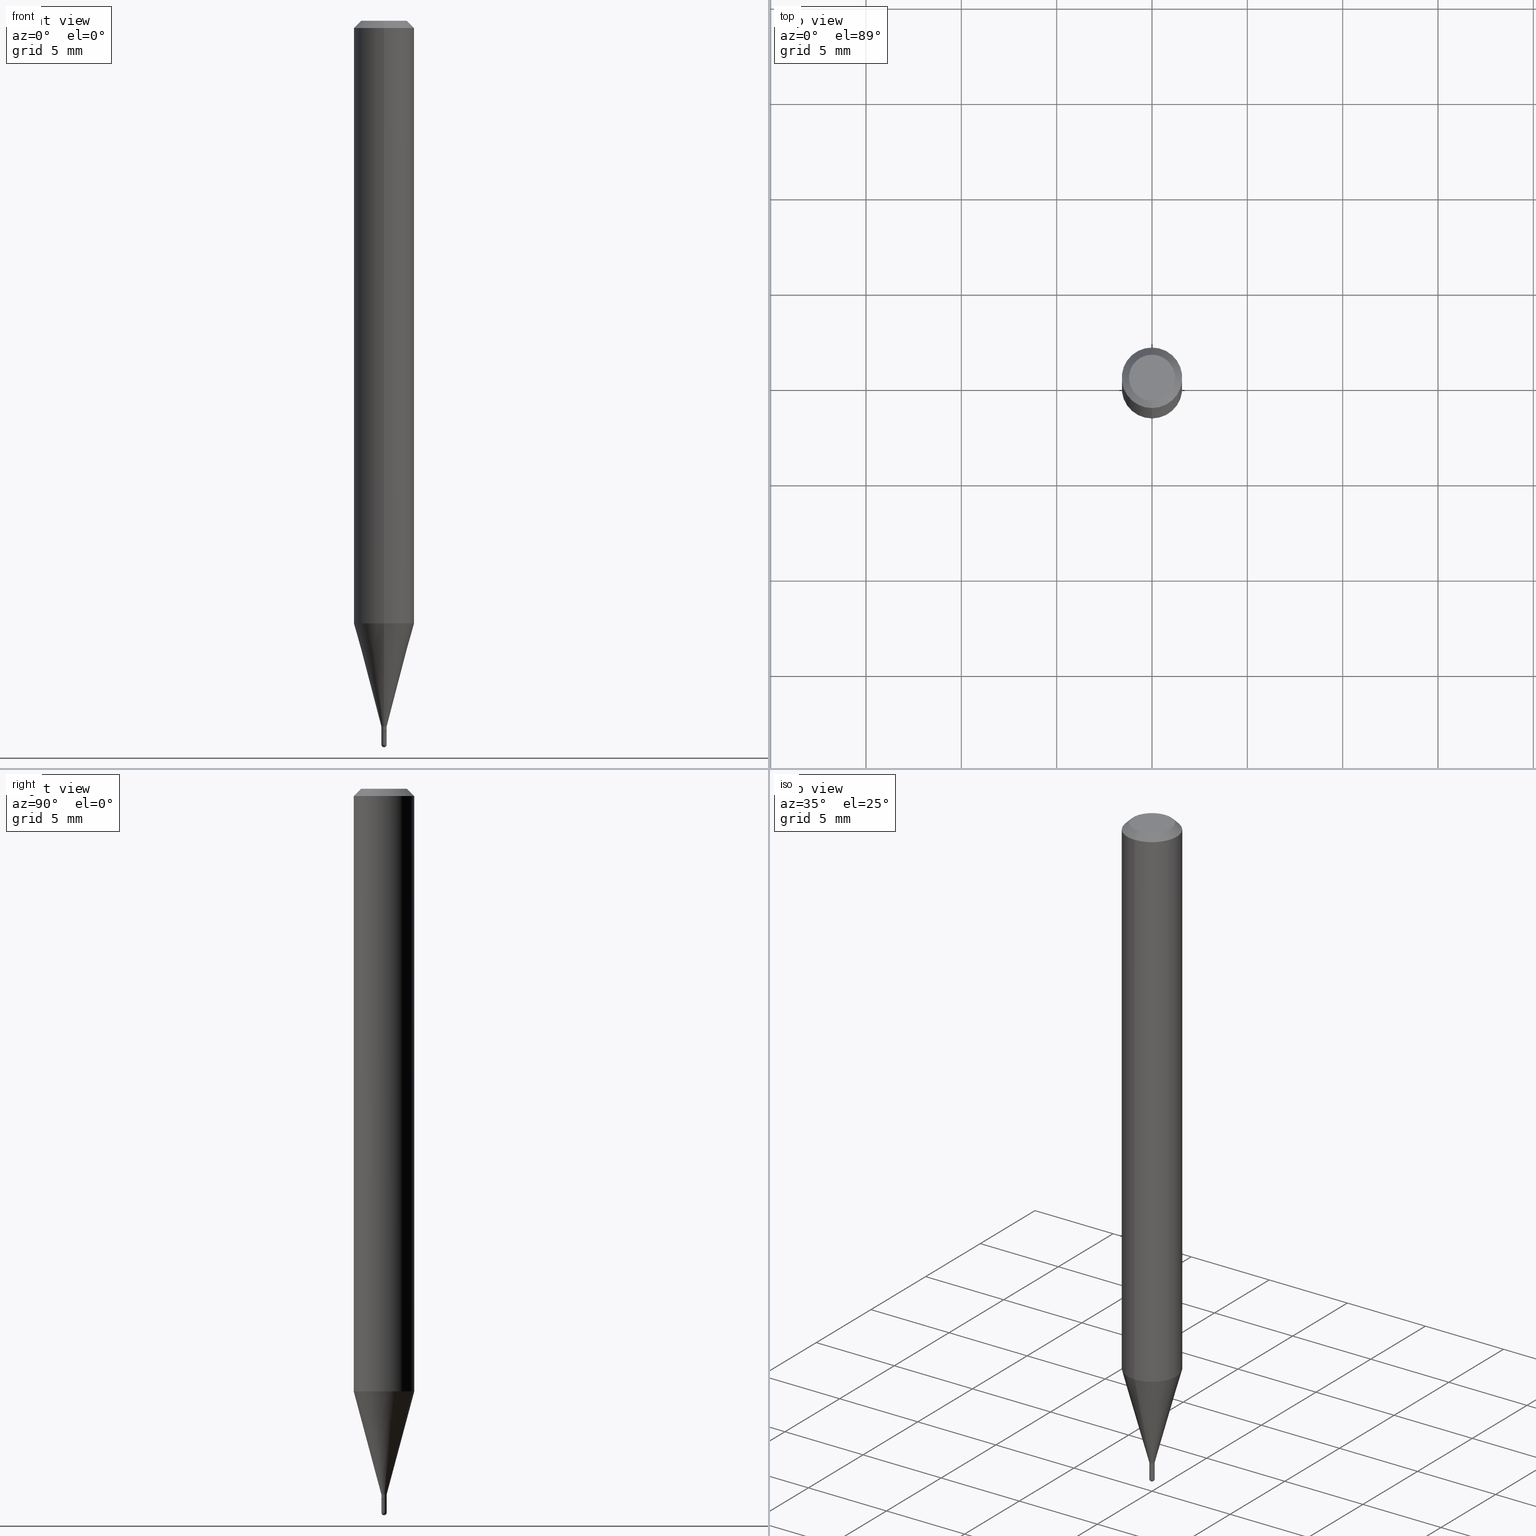
[diagram: canonical four-view strip — front | top / right | iso, engineering-drawing reading convention]
A machine part, canonical four-view strip (front | top / right | iso — engineering-drawing reading convention). The complete STEP part file that produces these views, byte-faithful:
ISO-10303-21;
HEADER;
FILE_DESCRIPTION (( 'STEP AP203' ),
    '1' );
FILE_NAME ('03109.STEP',
    '2024-03-08T18:12:47',
    ( '' ),
    ( '' ),
    'SwSTEP 2.0',
    'SolidWorks 2023',
    '' );
FILE_SCHEMA (( 'CONFIG_CONTROL_DESIGN' ));
ENDSEC;

DATA;
#1 = AXIS2_PLACEMENT_3D ( 'NONE', #455, #140, #299 ) ;
#2 = DIMENSIONAL_EXPONENTS ( 1.000000000000000000, 0.000000000000000000, 0.000000000000000000, 0.000000000000000000, 0.000000000000000000, 0.000000000000000000, 0.000000000000000000 ) ;
#3 = DIRECTION ( 'NONE',  ( 2.445479387329821699E-29, -3.491466186041714698E-15, -1.000000000000000000 ) ) ;
#4 = EDGE_CURVE ( 'NONE', #191, #144, #502, .T. ) ;
#5 = DIRECTION ( 'NONE',  ( 1.000000000000000000, -6.982962677686265922E-15, 4.883557194083112901E-29 ) ) ;
#6 = VERTEX_POINT ( 'NONE', #237 ) ;
#7 = CC_DESIGN_APPROVAL ( #121, ( #233 ) ) ;
#8 = CARTESIAN_POINT ( 'NONE',  ( 3.668219080994673974E-31, -5.237199279062489291E-17, -0.01499999999999976179 ) ) ;
#9 = DIRECTION ( 'NONE',  ( -2.445479387329821699E-29, 3.491466186041715092E-15, 1.000000000000000000 ) ) ;
#10 = FACE_OUTER_BOUND ( 'NONE', #465, .T. ) ;
#11 = APPLICATION_CONTEXT ( 'configuration controlled 3d designs of mechanical parts and assemblies' ) ;
#12 = SHAPE_DEFINITION_REPRESENTATION ( #446, #411 ) ;
#13 = EDGE_CURVE ( 'NONE', #456, #418, #122, .T. ) ;
#14 = CIRCLE ( 'NONE', #403, 0.005499999999999997946 ) ;
#15 = AXIS2_PLACEMENT_3D ( 'NONE', #410, #493, #132 ) ;
#16 = ORIENTED_EDGE ( 'NONE', *, *, #194, .F. ) ;
#17 = CARTESIAN_POINT ( 'NONE',  ( -3.491481338839544778E-17, -0.005000000000005121008, -1.467000000000000304 ) ) ;
#18 = CC_DESIGN_PERSON_AND_ORGANIZATION_ASSIGNMENT ( #454, #105, ( #233 ) ) ;
#19 = CARTESIAN_POINT ( 'NONE',  ( 3.587502738673595692E-29, -5.122003124082895786E-15, -1.467000000000000304 ) ) ;
#20 = ORIENTED_EDGE ( 'NONE', *, *, #474, .T. ) ;
#21 = AXIS2_PLACEMENT_3D ( 'NONE', #315, #439, #206 ) ;
#22 = DIRECTION ( 'NONE',  ( -2.445479387329821699E-29, 3.491466186041715092E-15, 1.000000000000000000 ) ) ;
#23 = DIRECTION ( 'NONE',  ( -6.982962677686265922E-15, -1.000000000000000000, 0.000000000000000000 ) ) ;
#24 = ORIENTED_EDGE ( 'NONE', *, *, #240, .F. ) ;
#25 = DIRECTION ( 'NONE',  ( -2.445479387329821699E-29, 3.491466186041715092E-15, 1.000000000000000000 ) ) ;
#26 = PERSON_AND_ORGANIZATION_ROLE ( 'creator' ) ;
#27 =( NAMED_UNIT ( * ) PLANE_ANGLE_UNIT ( ) SI_UNIT ( $, .RADIAN. ) );
#28 = DIRECTION ( 'NONE',  ( -2.445479387329821699E-29, 3.491466186041715092E-15, 1.000000000000000000 ) ) ;
#29 = CARTESIAN_POINT ( 'NONE',  ( -3.773273898774340269E-16, -0.04749999999999999362, 4.053325667668004325E-16 ) ) ;
#30 = VERTEX_POINT ( 'NONE', #276 ) ;
#31 = ORIENTED_EDGE ( 'NONE', *, *, #467, .T. ) ;
#32 = EDGE_CURVE ( 'NONE', #38, #252, #71, .T. ) ;
#33 = DIRECTION ( 'NONE',  ( -2.445468806185136597E-29, 3.491481338843145583E-15, 1.000000000000000000 ) ) ;
#34 = ORIENTED_EDGE ( 'NONE', *, *, #507, .F. ) ;
#35 = CC_DESIGN_PERSON_AND_ORGANIZATION_ASSIGNMENT ( #510, #257, ( #201 ) ) ;
#36 = EDGE_LOOP ( 'NONE', ( #334, #300 ) ) ;
#37 = DIRECTION ( 'NONE',  ( -2.445479387329821699E-29, 3.491466186041715092E-15, 1.000000000000000000 ) ) ;
#38 = VERTEX_POINT ( 'NONE', #229 ) ;
#39 = PLANE ( 'NONE',  #458 ) ;
#40 = VECTOR ( 'NONE', #434, 39.37007874015748143 ) ;
#41 = CC_DESIGN_APPROVAL ( #386, ( #443 ) ) ;
#42 = AXIS2_PLACEMENT_3D ( 'NONE', #8, #477, #436 ) ;
#43 = CARTESIAN_POINT ( 'NONE',  ( 3.668219080994673974E-31, -5.237199279062489291E-17, -0.01499999999999976179 ) ) ;
#44 = LINE ( 'NONE', #361, #504 ) ;
#45 = CARTESIAN_POINT ( 'NONE',  ( 4.440892098500928887E-16, 0.06249999999999563544, -1.244273103968574823 ) ) ;
#46 = CC_DESIGN_APPROVAL ( #154, ( #426 ) ) ;
#47 = DIRECTION ( 'NONE',  ( 1.839019923739600315E-15, 0.2588190451025249583, 0.9659258262890670910 ) ) ;
#48 = AXIS2_PLACEMENT_3D ( 'NONE', #512, #124, #466 ) ;
#49 = CARTESIAN_POINT ( 'NONE',  ( 0.000000000000000000, 0.000000000000000000, 0.000000000000000000 ) ) ;
#50 = CARTESIAN_POINT ( 'NONE',  ( 3.563063467339550855E-29, -5.087066233062778433E-15, -1.457000000000000073 ) ) ;
#51 = EDGE_CURVE ( 'NONE', #6, #191, #431, .T. ) ;
#52 = EDGE_CURVE ( 'NONE', #256, #423, #346, .T. ) ;
#53 = AXIS2_PLACEMENT_3D ( 'NONE', #380, #181, #193 ) ;
#54 = EDGE_CURVE ( 'NONE', #252, #139, #329, .T. ) ;
#55 = ORIENTED_EDGE ( 'NONE', *, *, #54, .F. ) ;
#56 = DIRECTION ( 'NONE',  ( -2.445479387329821699E-29, 3.491466186041714698E-15, 1.000000000000000000 ) ) ;
#57 = VECTOR ( 'NONE', #159, 39.37007874015748143 ) ;
#58 = CIRCLE ( 'NONE', #471, 0.005499999999999923353 ) ;
#59 = MANIFOLD_SOLID_BREP ( 'Body-Move/Copy2[1]', #208 ) ;
#60 = APPLICATION_CONTEXT ( 'configuration controlled 3d designs of mechanical parts and assemblies' ) ;
#61 = ORIENTED_EDGE ( 'NONE', *, *, #269, .F. ) ;
#62 = ADVANCED_FACE ( 'NONE', ( #86 ), #82, .T. ) ;
#63 = CARTESIAN_POINT ( 'NONE',  ( 3.840629472731033370E-17, 0.005499999999994877042, -1.467000000000000304 ) ) ;
#64 = CARTESIAN_POINT ( 'NONE',  ( 3.563063467339550855E-29, -5.087066233062778433E-15, -1.457000000000000073 ) ) ;
#65 = DIRECTION ( 'NONE',  ( -2.445479387329821699E-29, 3.491466186041715092E-15, 1.000000000000000000 ) ) ;
#66 = ORIENTED_EDGE ( 'NONE', *, *, #307, .T. ) ;
#67 = COORDINATED_UNIVERSAL_TIME_OFFSET ( 5, 0, .BEHIND. ) ;
#68 = LOCAL_TIME ( 13, 12, 47.00000000000000000, #364 ) ;
#69 = DIRECTION ( 'NONE',  ( 1.000000000000000000, -7.105427357601001070E-15, 4.926315508542082329E-29 ) ) ;
#70 = ORIENTED_EDGE ( 'NONE', *, *, #161, .F. ) ;
#71 = CIRCLE ( 'NONE', #427, 0.005499999999999853964 ) ;
#72 = AXIS2_PLACEMENT_3D ( 'NONE', #259, #372, #102 ) ;
#73 = CARTESIAN_POINT ( 'NONE',  ( 3.587518261212848565E-29, -5.121980894923197580E-15, -1.467000000000000304 ) ) ;
#74 = ORIENTED_EDGE ( 'NONE', *, *, #214, .T. ) ;
#75 = CALENDAR_DATE ( 2024, 8, 3 ) ;
#76 = ORIENTED_EDGE ( 'NONE', *, *, #161, .T. ) ;
#77 = ADVANCED_FACE ( 'NONE', ( #238 ), #39, .F. ) ;
#78 = CARTESIAN_POINT ( 'NONE',  ( 3.907985046684069855E-17, 0.005499999999994785102, -1.466500000000000359 ) ) ;
#79 = ORIENTED_EDGE ( 'NONE', *, *, #32, .T. ) ;
#80 = CC_DESIGN_PERSON_AND_ORGANIZATION_ASSIGNMENT ( #81, #312, ( #426 ) ) ;
#81 = PERSON_AND_ORGANIZATION ( #481, #163 ) ;
#82 = CYLINDRICAL_SURFACE ( 'NONE', #330, 0.005499999999999999681 ) ;
#83 = CARTESIAN_POINT ( 'NONE',  ( 3.654753130843686882E-29, -5.218018860901081637E-15, -1.494500000000000162 ) ) ;
#84 = CIRCLE ( 'NONE', #362, 0.005499999999999999681 ) ;
#85 = APPROVAL_ROLE ( '' ) ;
#86 = FACE_OUTER_BOUND ( 'NONE', #371, .T. ) ;
#87 = ORIENTED_EDGE ( 'NONE', *, *, #467, .F. ) ;
#88 = AXIS2_PLACEMENT_3D ( 'NONE', #217, #28, #367 ) ;
#89 = CIRCLE ( 'NONE', #366, 0.004999999999999999237 ) ;
#90 = DIRECTION ( 'NONE',  ( -6.982962677686265922E-15, -1.000000000000000000, 0.000000000000000000 ) ) ;
#91 = CARTESIAN_POINT ( 'NONE',  ( -3.491481338839544778E-17, -0.005000000000005121008, -1.467000000000000304 ) ) ;
#92 = EDGE_CURVE ( 'NONE', #266, #144, #393, .T. ) ;
#93 = APPROVAL_PERSON_ORGANIZATION ( #167, #154, #402 ) ;
#94 = CARTESIAN_POINT ( 'NONE',  ( 3.654282789384638190E-29, -5.218692416640612921E-15, -1.494500000000000162 ) ) ;
#95 = CONICAL_SURFACE ( 'NONE', #158, 0.005499999999999923353, 0.2617993877991502960 ) ;
#96 = FACE_OUTER_BOUND ( 'NONE', #357, .T. ) ;
#97 = CARTESIAN_POINT ( 'NONE',  ( -0.005499999999999999681, -5.130931142025183167E-15, -1.467000000000000304 ) ) ;
#98 = EDGE_LOOP ( 'NONE', ( #87, #79, #447, #262 ) ) ;
#99 = CARTESIAN_POINT ( 'NONE',  ( -5.856627790393052860E-45, 8.361639848748273700E-31, 2.394879229298189518E-16 ) ) ;
#100 = LINE ( 'NONE', #337, #143 ) ;
#101 = ADVANCED_FACE ( 'NONE', ( #277 ), #298, .T. ) ;
#102 = DIRECTION ( 'NONE',  ( 1.000000000000000000, -6.982962677686245411E-15, 0.000000000000000000 ) ) ;
#103 = CYLINDRICAL_SURFACE ( 'NONE', #311, 0.06250000000000000000 ) ;
#104 = ORIENTED_EDGE ( 'NONE', *, *, #194, .T. ) ;
#105 = PERSON_AND_ORGANIZATION_ROLE ( 'creator' ) ;
#106 = CARTESIAN_POINT ( 'NONE',  ( 0.000000000000000000, 0.000000000000000000, 0.000000000000000000 ) ) ;
#107 = ORIENTED_EDGE ( 'NONE', *, *, #307, .F. ) ;
#108 = CIRCLE ( 'NONE', #295, 0.04749999999999999362 ) ;
#109 = ADVANCED_FACE ( 'NONE', ( #162 ), #164, .T. ) ;
#110 = DIRECTION ( 'NONE',  ( 1.000000000000000000, -6.982962677686265922E-15, 4.876176775795936353E-29 ) ) ;
#111 = DIRECTION ( 'NONE',  ( 1.000000000000000000, -6.982962677686265922E-15, 4.876176775795936353E-29 ) ) ;
#112 = EDGE_LOOP ( 'NONE', ( #182, #496, #487, #70 ) ) ;
#113 = CARTESIAN_POINT ( 'NONE',  ( 2.415845301584669169E-16, 0.005499999999994836276, -1.457000000000000073 ) ) ;
#114 = CARTESIAN_POINT ( 'NONE',  ( 3.654753130843686882E-29, -5.218018860901081637E-15, -1.494500000000000162 ) ) ;
#115 = CARTESIAN_POINT ( 'NONE',  ( 3.563063467339550855E-29, -5.087066233062778433E-15, -1.457000000000000073 ) ) ;
#116 = ORIENTED_EDGE ( 'NONE', *, *, #52, .T. ) ;
#117 = ORIENTED_EDGE ( 'NONE', *, *, #199, .T. ) ;
#118 = AXIS2_PLACEMENT_3D ( 'NONE', #146, #69, #384 ) ;
#119 = AXIS2_PLACEMENT_3D ( 'NONE', #43, #379, #304 ) ;
#120 = VECTOR ( 'NONE', #451, 39.37007874015748143 ) ;
#121 = APPROVAL ( #382, 'UNSPECIFIED' ) ;
#122 = LINE ( 'NONE', #153, #57 ) ;
#123 = EDGE_LOOP ( 'NONE', ( #452, #20, #326, #323, #381 ) ) ;
#124 = DIRECTION ( 'NONE',  ( -2.445479387329821699E-29, 3.491466186041715092E-15, 1.000000000000000000 ) ) ;
#125 = LINE ( 'NONE', #281, #40 ) ;
#126 = DIRECTION ( 'NONE',  ( -2.445479387329821699E-29, 3.491466186041715092E-15, 1.000000000000000000 ) ) ;
#127 = CC_DESIGN_DATE_AND_TIME_ASSIGNMENT ( #171, #397, ( #426 ) ) ;
#128 = DIRECTION ( 'NONE',  ( -6.982962677686265922E-15, -1.000000000000000000, 3.491466186041715092E-15 ) ) ;
#129 = DIRECTION ( 'NONE',  ( -2.445479387329821699E-29, 3.491466186041714698E-15, 1.000000000000000000 ) ) ;
#130 = DIRECTION ( 'NONE',  ( -2.445479387329821699E-29, 3.491466186041715092E-15, 1.000000000000000000 ) ) ;
#131 = CARTESIAN_POINT ( 'NONE',  ( 3.840629472727447874E-16, 0.04749999999999999362, 7.364327909283752044E-17 ) ) ;
#132 = DIRECTION ( 'NONE',  ( 1.000000000000000000, -6.982962677686247778E-15, 0.000000000000000000 ) ) ;
#133 = EDGE_CURVE ( 'NONE', #303, #256, #125, .T. ) ;
#134 = APPROVAL_PERSON_ORGANIZATION ( #497, #121, #469 ) ;
#135 = ADVANCED_FACE ( 'NONE', ( #310 ), #200, .T. ) ;
#136 = ORIENTED_EDGE ( 'NONE', *, *, #174, .F. ) ;
#137 = DIRECTION ( 'NONE',  ( 2.445479387329821699E-29, -3.491466186041715092E-15, -1.000000000000000000 ) ) ;
#138 =( CONVERSION_BASED_UNIT ( 'INCH', #333 ) LENGTH_UNIT ( ) NAMED_UNIT ( #2 ) );
#139 = VERTEX_POINT ( 'NONE', #205 ) ;
#140 = DIRECTION ( 'NONE',  ( -2.445479387329821699E-29, 3.491466186041715092E-15, 1.000000000000000000 ) ) ;
#141 = ORIENTED_EDGE ( 'NONE', *, *, #213, .T. ) ;
#142 = PERSON_AND_ORGANIZATION_ROLE ( 'design_supplier' ) ;
#143 = VECTOR ( 'NONE', #222, 39.37007874015748143 ) ;
#144 = VERTEX_POINT ( 'NONE', #45 ) ;
#145 = LOCAL_TIME ( 13, 12, 47.00000000000000000, #67 ) ;
#146 = CARTESIAN_POINT ( 'NONE',  ( 3.654282789384638190E-29, -5.218692416640612921E-15, -1.494500000000000162 ) ) ;
#147 = ORIENTED_EDGE ( 'NONE', *, *, #174, .T. ) ;
#148 = DIRECTION ( 'NONE',  ( 2.445479387329821699E-29, -3.491466186041715092E-15, -1.000000000000000000 ) ) ;
#149 = AXIS2_PLACEMENT_3D ( 'NONE', #49, #126, #128 ) ;
#150 = ORIENTED_EDGE ( 'NONE', *, *, #405, .F. ) ;
#151 = CARTESIAN_POINT ( 'NONE',  ( 0.000000000000000000, 0.000000000000000000, 0.000000000000000000 ) ) ;
#152 = ORIENTED_EDGE ( 'NONE', *, *, #313, .F. ) ;
#153 = CARTESIAN_POINT ( 'NONE',  ( 3.552713678804086623E-17, 0.004999999999994876598, -1.467000000000000304 ) ) ;
#154 = APPROVAL ( #400, 'UNSPECIFIED' ) ;
#155 = COORDINATED_UNIVERSAL_TIME_OFFSET ( 5, 0, .BEHIND. ) ;
#156 = CARTESIAN_POINT ( 'NONE',  ( 0.000000000000000000, 0.000000000000000000, 0.000000000000000000 ) ) ;
#157 = COORDINATED_UNIVERSAL_TIME_OFFSET ( 5, 0, .BEHIND. ) ;
#158 = AXIS2_PLACEMENT_3D ( 'NONE', #64, #22, #286 ) ;
#159 = DIRECTION ( 'NONE',  ( 5.024295867788190974E-15, 0.7071067811865681119, 0.7071067811865270336 ) ) ;
#160 = CARTESIAN_POINT ( 'NONE',  ( -4.364351673553611504E-16, -0.06250000000000434375, -1.244273103968574157 ) ) ;
#161 = EDGE_CURVE ( 'NONE', #191, #423, #309, .T. ) ;
#162 = FACE_OUTER_BOUND ( 'NONE', #268, .T. ) ;
#163 = ORGANIZATION ( 'UNSPECIFIED', 'UNSPECIFIED', '' ) ;
#164 = SPHERICAL_SURFACE ( 'NONE', #202, 0.005499999999999853964 ) ;
#165 = ADVANCED_FACE ( 'NONE', ( #435 ), #244, .T. ) ;
#166 = DIRECTION ( 'NONE',  ( -4.937700262164674260E-15, -0.7071067811865632269, 0.7071067811865319186 ) ) ;
#167 = PERSON_AND_ORGANIZATION ( #481, #163 ) ;
#168 = CIRCLE ( 'NONE', #15, 0.005499999999999997946 ) ;
#169 = AXIS2_PLACEMENT_3D ( 'NONE', #115, #37, #23 ) ;
#170 = CONICAL_SURFACE ( 'NONE', #318, 0.004999999999999999237, 0.7853981633974739252 ) ;
#171 = DATE_AND_TIME ( #325, #245 ) ;
#172 = DIRECTION ( 'NONE',  ( -6.982962677686266711E-15, -1.000000000000000000, 3.491466186041715881E-15 ) ) ;
#173 = ADVANCED_FACE ( 'NONE', ( #10 ), #170, .T. ) ;
#174 = EDGE_CURVE ( 'NONE', #344, #288, #442, .T. ) ;
#175 = ORIENTED_EDGE ( 'NONE', *, *, #133, .F. ) ;
#176 = AXIS2_PLACEMENT_3D ( 'NONE', #265, #230, #373 ) ;
#177 = VECTOR ( 'NONE', #248, 39.37007874015748143 ) ;
#178 =( LENGTH_UNIT ( ) NAMED_UNIT ( * ) SI_UNIT ( $, .METRE. ) );
#179 = CARTESIAN_POINT ( 'NONE',  ( 3.586295521519184800E-29, -5.120235161830176070E-15, -1.466500000000000359 ) ) ;
#180 = DIRECTION ( 'NONE',  ( -2.445479387329821699E-29, 3.491466186041715092E-15, 1.000000000000000000 ) ) ;
#181 = DIRECTION ( 'NONE',  ( -2.445468806185136597E-29, 3.491481338843145583E-15, 1.000000000000000000 ) ) ;
#182 = ORIENTED_EDGE ( 'NONE', *, *, #4, .T. ) ;
#183 = DIRECTION ( 'NONE',  ( 6.982962677686265922E-15, 1.000000000000000000, -3.483106191921935554E-15 ) ) ;
#184 = MECHANICAL_CONTEXT ( 'NONE', #60, 'mechanical' ) ;
#185 = FACE_OUTER_BOUND ( 'NONE', #123, .T. ) ;
#186 = ORIENTED_EDGE ( 'NONE', *, *, #133, .T. ) ;
#187 = PERSON_AND_ORGANIZATION ( #481, #163 ) ;
#188 = CONICAL_SURFACE ( 'NONE', #1, 0.004999999999999999237, 0.7853981633974739252 ) ;
#189 = CARTESIAN_POINT ( 'NONE',  ( 3.654282789384638190E-29, -5.218692416640612921E-15, -1.494500000000000162 ) ) ;
#190 = DIRECTION ( 'NONE',  ( 1.000000000000000000, -6.982962677686245411E-15, 0.000000000000000000 ) ) ;
#191 = VERTEX_POINT ( 'NONE', #160 ) ;
#192 = EDGE_LOOP ( 'NONE', ( #74, #368 ) ) ;
#193 = DIRECTION ( 'NONE',  ( 1.000000000000000000, -6.982962677686247778E-15, 0.000000000000000000 ) ) ;
#194 = EDGE_CURVE ( 'NONE', #418, #266, #44, .T. ) ;
#195 = CARTESIAN_POINT ( 'NONE',  ( -3.840629472723830084E-17, -0.005500000000005010430, -1.457000000000000073 ) ) ;
#196 = CIRCLE ( 'NONE', #42, 0.06250000000000000000 ) ;
#197 = AXIS2_PLACEMENT_3D ( 'NONE', #457, #148, #183 ) ;
#198 = ORIENTED_EDGE ( 'NONE', *, *, #13, .T. ) ;
#199 = EDGE_CURVE ( 'NONE', #423, #256, #196, .T. ) ;
#200 = CYLINDRICAL_SURFACE ( 'NONE', #149, 0.06250000000000000000 ) ;
#201 = PRODUCT ( '03109', '03109', '', ( #184 ) ) ;
#202 = AXIS2_PLACEMENT_3D ( 'NONE', #94, #5, #396 ) ;
#203 = CARTESIAN_POINT ( 'NONE',  ( 3.587518261212848565E-29, -5.121980894923197580E-15, -1.467000000000000304 ) ) ;
#204 = CC_DESIGN_DATE_AND_TIME_ASSIGNMENT ( #340, #305, ( #443 ) ) ;
#205 = CARTESIAN_POINT ( 'NONE',  ( 0.005499999999999997946, -5.208417287219262973E-15, -1.494500000000000162 ) ) ;
#206 = DIRECTION ( 'NONE',  ( -6.982962677686265922E-15, -1.000000000000000000, 0.000000000000000000 ) ) ;
#207 = AXIS2_PLACEMENT_3D ( 'NONE', #444, #251, #342 ) ;
#208 = CLOSED_SHELL ( 'NONE', ( #453, #109, #239, #165, #62 ) ) ;
#209 = CARTESIAN_POINT ( 'NONE',  ( -3.840629472727392900E-17, -0.005499999999999923353, 1.920306402322916623E-17 ) ) ;
#210 = ADVANCED_FACE ( 'NONE', ( #247 ), #478, .T. ) ;
#211 = AXIS2_PLACEMENT_3D ( 'NONE', #114, #347, #272 ) ;
#212 = LINE ( 'NONE', #448, #365 ) ;
#213 = EDGE_CURVE ( 'NONE', #288, #6, #401, .T. ) ;
#214 = EDGE_CURVE ( 'NONE', #303, #430, #246, .T. ) ;
#215 = DATE_AND_TIME ( #324, #68 ) ;
#216 = DIRECTION ( 'NONE',  ( 6.982962677686265922E-15, 1.000000000000000000, -3.483106191921935554E-15 ) ) ;
#217 = CARTESIAN_POINT ( 'NONE',  ( 3.563063467339550855E-29, -5.087066233062778433E-15, -1.457000000000000073 ) ) ;
#218 = VERTEX_POINT ( 'NONE', #322 ) ;
#219 = DIRECTION ( 'NONE',  ( -6.982962677686265922E-15, -1.000000000000000000, 3.491466186041714698E-15 ) ) ;
#220 = EDGE_LOOP ( 'NONE', ( #429, #390 ) ) ;
#221 = DIRECTION ( 'NONE',  ( -6.982962677686265922E-15, -1.000000000000000000, 0.000000000000000000 ) ) ;
#222 = DIRECTION ( 'NONE',  ( -4.851104656540964275E-15, -0.7071067811865500152, -0.7071067811865450192 ) ) ;
#223 = DIRECTION ( 'NONE',  ( -2.445468806185136877E-29, 3.491481338843145188E-15, 1.000000000000000000 ) ) ;
#224 = ORIENTED_EDGE ( 'NONE', *, *, #51, .T. ) ;
#225 = FACE_OUTER_BOUND ( 'NONE', #508, .T. ) ;
#226 = ORIENTED_EDGE ( 'NONE', *, *, #92, .F. ) ;
#227 = CARTESIAN_POINT ( 'NONE',  ( 3.587518261212848565E-29, -5.121980894923197580E-15, -1.467000000000000304 ) ) ;
#228 = DESIGN_CONTEXT ( 'detailed design', #11, 'design' ) ;
#229 = CARTESIAN_POINT ( 'NONE',  ( 3.667497697089131858E-29, -5.238232341874015890E-15, -1.500000000000000222 ) ) ;
#230 = DIRECTION ( 'NONE',  ( -2.445479387329821699E-29, 3.491466186041715092E-15, 1.000000000000000000 ) ) ;
#231 = ORIENTED_EDGE ( 'NONE', *, *, #317, .F. ) ;
#232 = APPROVAL_STATUS ( 'not_yet_approved' ) ;
#233 = PRODUCT_DEFINITION_FORMATION_WITH_SPECIFIED_SOURCE ( 'ANY', '', #201, .NOT_KNOWN. ) ;
#234 = ORIENTED_EDGE ( 'NONE', *, *, #319, .F. ) ;
#235 = PLANE ( 'NONE',  #260 ) ;
#236 = ADVANCED_FACE ( 'NONE', ( #404 ), #279, .T. ) ;
#237 = CARTESIAN_POINT ( 'NONE',  ( -3.840629472723830084E-17, -0.005500000000005010430, -1.457000000000000073 ) ) ;
#238 = FACE_OUTER_BOUND ( 'NONE', #192, .T. ) ;
#239 = ADVANCED_FACE ( 'NONE', ( #250 ), #408, .F. ) ;
#240 = EDGE_CURVE ( 'NONE', #288, #418, #58, .T. ) ;
#241 = ORIENTED_EDGE ( 'NONE', *, *, #4, .F. ) ;
#242 = CIRCLE ( 'NONE', #88, 0.005499999999999923353 ) ;
#243 = VECTOR ( 'NONE', #166, 39.37007874015748143 ) ;
#244 = SPHERICAL_SURFACE ( 'NONE', #21, 0.005499999999999853964 ) ;
#245 = LOCAL_TIME ( 13, 12, 47.00000000000000000, #157 ) ;
#246 = CIRCLE ( 'NONE', #480, 0.04749999999999999362 ) ;
#247 = FACE_OUTER_BOUND ( 'NONE', #409, .T. ) ;
#248 = DIRECTION ( 'NONE',  ( -2.445479387329821699E-29, 3.491466186041714698E-15, 1.000000000000000000 ) ) ;
#249 = CARTESIAN_POINT ( 'NONE',  ( -3.840629472723740105E-17, -0.005500000000005144871, -1.494500000000000162 ) ) ;
#250 = FACE_OUTER_BOUND ( 'NONE', #36, .T. ) ;
#251 = DIRECTION ( 'NONE',  ( -2.445479387329821699E-29, 3.491466186041715092E-15, 1.000000000000000000 ) ) ;
#252 = VERTEX_POINT ( 'NONE', #249 ) ;
#253 = CARTESIAN_POINT ( 'NONE',  ( -5.856627790393052860E-45, 8.361639848748273700E-31, 2.394879229298189518E-16 ) ) ;
#254 = CARTESIAN_POINT ( 'NONE',  ( 3.587518261212848565E-29, -5.121980894923197580E-15, -1.467000000000000304 ) ) ;
#255 = LINE ( 'NONE', #417, #320 ) ;
#256 = VERTEX_POINT ( 'NONE', #488 ) ;
#257 = PERSON_AND_ORGANIZATION_ROLE ( 'design_owner' ) ;
#258 = AXIS2_PLACEMENT_3D ( 'NONE', #503, #399, #358 ) ;
#259 = CARTESIAN_POINT ( 'NONE',  ( 3.587502738673595692E-29, -5.122003124082895786E-15, -1.467000000000000304 ) ) ;
#260 = AXIS2_PLACEMENT_3D ( 'NONE', #73, #338, #219 ) ;
#261 = DIRECTION ( 'NONE',  ( -2.445468806185136597E-29, 3.491481338843145583E-15, 1.000000000000000000 ) ) ;
#262 = ORIENTED_EDGE ( 'NONE', *, *, #282, .F. ) ;
#263 = CALENDAR_DATE ( 2024, 8, 3 ) ;
#264 = ORIENTED_EDGE ( 'NONE', *, *, #317, .T. ) ;
#265 = CARTESIAN_POINT ( 'NONE',  ( 0.000000000000000000, 0.000000000000000000, 0.000000000000000000 ) ) ;
#266 = VERTEX_POINT ( 'NONE', #113 ) ;
#267 = ADVANCED_FACE ( 'NONE', ( #450 ), #273, .T. ) ;
#268 = EDGE_LOOP ( 'NONE', ( #349, #31, #150, #55 ) ) ;
#269 = EDGE_CURVE ( 'NONE', #430, #303, #108, .T. ) ;
#270 = EDGE_LOOP ( 'NONE', ( #231, #294, #186, #116 ) ) ;
#271 = CIRCLE ( 'NONE', #118, 0.005499999999999853964 ) ;
#272 = DIRECTION ( 'NONE',  ( 1.000000000000000000, -6.982962677686247778E-15, 0.000000000000000000 ) ) ;
#273 = CONICAL_SURFACE ( 'NONE', #197, 0.06250000000000000000, 0.7853981633974483900 ) ;
#274 = COORDINATED_UNIVERSAL_TIME_OFFSET ( 5, 0, .BEHIND. ) ;
#275 = DIRECTION ( 'NONE',  ( -1.807323732225330139E-15, -0.2588190451025181860, 0.9659258262890689783 ) ) ;
#276 = CARTESIAN_POINT ( 'NONE',  ( -0.005499999999999997946, -5.130931142025183167E-15, -1.494500000000000162 ) ) ;
#277 = FACE_OUTER_BOUND ( 'NONE', #302, .T. ) ;
#278 = AXIS2_PLACEMENT_3D ( 'NONE', #353, #420, #464 ) ;
#279 = CONICAL_SURFACE ( 'NONE', #428, 0.06250000000000000000, 0.7853981633974483900 ) ;
#280 = CARTESIAN_POINT ( 'NONE',  ( -4.364351673553916201E-16, -0.06250000000000000000, 2.182166366276071933E-16 ) ) ;
#281 = CARTESIAN_POINT ( 'NONE',  ( 4.364351673553919652E-16, 0.06249999999999995143, -0.01499999999999997863 ) ) ;
#282 = EDGE_CURVE ( 'NONE', #407, #30, #168, .T. ) ;
#283 = AXIS2_PLACEMENT_3D ( 'NONE', #106, #261, #111 ) ;
#284 = DIRECTION ( 'NONE',  ( -6.982962677686265922E-15, -1.000000000000000000, 3.491466186041715092E-15 ) ) ;
#285 = EDGE_CURVE ( 'NONE', #456, #344, #89, .T. ) ;
#286 = DIRECTION ( 'NONE',  ( -6.982962677686265922E-15, -1.000000000000000000, 0.000000000000000000 ) ) ;
#287 = ORIENTED_EDGE ( 'NONE', *, *, #240, .T. ) ;
#288 = VERTEX_POINT ( 'NONE', #414 ) ;
#289 = CC_DESIGN_PERSON_AND_ORGANIZATION_ASSIGNMENT ( #187, #26, ( #443 ) ) ;
#290 = DIRECTION ( 'NONE',  ( 2.438088387897960049E-29, -3.491481338843145188E-15, -1.000000000000000000 ) ) ;
#291 = DIRECTION ( 'NONE',  ( -2.445468806185136597E-29, 3.491481338843145583E-15, 1.000000000000000000 ) ) ;
#292 = DIRECTION ( 'NONE',  ( -2.445479387329821699E-29, 3.491466186041715092E-15, 1.000000000000000000 ) ) ;
#293 = APPROVAL_DATE_TIME ( #494, #121 ) ;
#294 = ORIENTED_EDGE ( 'NONE', *, *, #214, .F. ) ;
#295 = AXIS2_PLACEMENT_3D ( 'NONE', #253, #292, #335 ) ;
#296 =( NAMED_UNIT ( * ) SI_UNIT ( $, .STERADIAN. ) SOLID_ANGLE_UNIT ( ) );
#297 = ORIENTED_EDGE ( 'NONE', *, *, #54, .T. ) ;
#298 = CONICAL_SURFACE ( 'NONE', #348, 0.005499999999999923353, 0.2617993877991502960 ) ;
#299 = DIRECTION ( 'NONE',  ( -6.982962677686265922E-15, -1.000000000000000000, 0.000000000000000000 ) ) ;
#300 = ORIENTED_EDGE ( 'NONE', *, *, #507, .T. ) ;
#301 = EDGE_CURVE ( 'NONE', #144, #191, #389, .T. ) ;
#302 = EDGE_LOOP ( 'NONE', ( #226, #66, #224, #387 ) ) ;
#303 = VERTEX_POINT ( 'NONE', #131 ) ;
#304 = DIRECTION ( 'NONE',  ( -6.982962677686265922E-15, -1.000000000000000000, 3.483106191921935554E-15 ) ) ;
#305 = DATE_TIME_ROLE ( 'creation_date' ) ;
#306 = ORIENTED_EDGE ( 'NONE', *, *, #213, .F. ) ;
#307 = EDGE_CURVE ( 'NONE', #266, #6, #242, .T. ) ;
#308 = DIRECTION ( 'NONE',  ( 6.982962677686265922E-15, 1.000000000000000000, -3.491466186041714698E-15 ) ) ;
#309 = LINE ( 'NONE', #280, #391 ) ;
#310 = FACE_OUTER_BOUND ( 'NONE', #505, .T. ) ;
#311 = AXIS2_PLACEMENT_3D ( 'NONE', #151, #65, #412 ) ;
#312 = PERSON_AND_ORGANIZATION_ROLE ( 'classification_officer' ) ;
#313 = EDGE_CURVE ( 'NONE', #144, #256, #212, .T. ) ;
#314 = DIRECTION ( 'NONE',  ( -2.445479387329821699E-29, 3.491466186041714698E-15, 1.000000000000000000 ) ) ;
#315 = CARTESIAN_POINT ( 'NONE',  ( 3.654282789384638190E-29, -5.218692416640612921E-15, -1.494500000000000162 ) ) ;
#316 = CARTESIAN_POINT ( 'NONE',  ( 0.000000000000000000, 0.000000000000000000, 0.000000000000000000 ) ) ;
#317 = EDGE_CURVE ( 'NONE', #430, #423, #100, .T. ) ;
#318 = AXIS2_PLACEMENT_3D ( 'NONE', #203, #363, #90 ) ;
#319 = EDGE_CURVE ( 'NONE', #418, #288, #432, .T. ) ;
#320 = VECTOR ( 'NONE', #223, 39.37007874015748143 ) ;
#321 = VECTOR ( 'NONE', #47, 39.37007874015748143 ) ;
#322 = CARTESIAN_POINT ( 'NONE',  ( 0.005499999999999999681, -5.160409418810169653E-15, -1.467000000000000304 ) ) ;
#323 = ORIENTED_EDGE ( 'NONE', *, *, #345, .F. ) ;
#324 = CALENDAR_DATE ( 2024, 8, 3 ) ;
#325 = CALENDAR_DATE ( 2024, 8, 3 ) ;
#326 = ORIENTED_EDGE ( 'NONE', *, *, #359, .F. ) ;
#327 = DIRECTION ( 'NONE',  ( -6.982962677686265922E-15, -1.000000000000000000, 0.000000000000000000 ) ) ;
#328 = CIRCLE ( 'NONE', #53, 0.005499999999999997946 ) ;
#329 = CIRCLE ( 'NONE', #211, 0.005499999999999997946 ) ;
#330 = AXIS2_PLACEMENT_3D ( 'NONE', #156, #461, #110 ) ;
#331 = ADVANCED_FACE ( 'NONE', ( #96 ), #95, .T. ) ;
#332 = LINE ( 'NONE', #490, #120 ) ;
#333 = LENGTH_MEASURE_WITH_UNIT ( LENGTH_MEASURE( 0.02539999999999999897 ), #178 );
#334 = ORIENTED_EDGE ( 'NONE', *, *, #359, .T. ) ;
#335 = DIRECTION ( 'NONE',  ( -6.982962677686266711E-15, -1.000000000000000000, 3.491466186041715881E-15 ) ) ;
#336 = DATE_AND_TIME ( #75, #470 ) ;
#337 = CARTESIAN_POINT ( 'NONE',  ( -4.287811248607203282E-16, -0.06250000000000005551, -0.01499999999999954321 ) ) ;
#338 = DIRECTION ( 'NONE',  ( -2.445479387329821699E-29, 3.491466186041714698E-15, 1.000000000000000000 ) ) ;
#339 = VERTEX_POINT ( 'NONE', #97 ) ;
#340 = DATE_AND_TIME ( #352, #475 ) ;
#341 = DIRECTION ( 'NONE',  ( -1.000000000000000000, 6.982962677686265922E-15, -4.876176775795935793E-29 ) ) ;
#342 = DIRECTION ( 'NONE',  ( -6.982962677686265922E-15, -1.000000000000000000, 0.000000000000000000 ) ) ;
#343 = CARTESIAN_POINT ( 'NONE',  ( 3.907985046684152439E-17, 0.005499999999994708774, -1.494500000000000162 ) ) ;
#344 = VERTEX_POINT ( 'NONE', #17 ) ;
#345 = EDGE_CURVE ( 'NONE', #139, #218, #332, .T. ) ;
#346 = CIRCLE ( 'NONE', #119, 0.06250000000000000000 ) ;
#347 = DIRECTION ( 'NONE',  ( -2.445468806185136597E-29, 3.491481338843145583E-15, 1.000000000000000000 ) ) ;
#348 = AXIS2_PLACEMENT_3D ( 'NONE', #50, #9, #479 ) ;
#349 = ORIENTED_EDGE ( 'NONE', *, *, #32, .F. ) ;
#350 = ORIENTED_EDGE ( 'NONE', *, *, #484, .T. ) ;
#351 = CYLINDRICAL_SURFACE ( 'NONE', #176, 0.005499999999999923353 ) ;
#352 = CALENDAR_DATE ( 2024, 8, 3 ) ;
#353 = CARTESIAN_POINT ( 'NONE',  ( 3.042844227964045116E-29, -4.344337468707445458E-15, -1.244273103968574601 ) ) ;
#354 = CARTESIAN_POINT ( 'NONE',  ( 3.316907271900976096E-16, 0.04749999999999999362, -4.610068237207196780E-17 ) ) ;
#355 = VECTOR ( 'NONE', #275, 39.37007874015748143 ) ;
#356 = CIRCLE ( 'NONE', #482, 0.004999999999999999237 ) ;
#357 = EDGE_LOOP ( 'NONE', ( #350, #463, #241, #424 ) ) ;
#358 = DIRECTION ( 'NONE',  ( 1.000000000000000000, 0.000000000000000000, 0.000000000000000000 ) ) ;
#359 = EDGE_CURVE ( 'NONE', #218, #339, #441, .T. ) ;
#360 = PRODUCT_RELATED_PRODUCT_CATEGORY ( 'detail', '', ( #201 ) ) ;
#361 = CARTESIAN_POINT ( 'NONE',  ( 3.907985046680495945E-17, 0.005499999999999923353, -1.920306402322916623E-17 ) ) ;
#362 = AXIS2_PLACEMENT_3D ( 'NONE', #19, #33, #190 ) ;
#363 = DIRECTION ( 'NONE',  ( -2.445479387329821699E-29, 3.491466186041715092E-15, 1.000000000000000000 ) ) ;
#364 = COORDINATED_UNIVERSAL_TIME_OFFSET ( 5, 0, .BEHIND. ) ;
#365 = VECTOR ( 'NONE', #56, 39.37007874015748143 ) ;
#366 = AXIS2_PLACEMENT_3D ( 'NONE', #227, #377, #221 ) ;
#367 = DIRECTION ( 'NONE',  ( -6.982962677686265922E-15, -1.000000000000000000, 0.000000000000000000 ) ) ;
#368 = ORIENTED_EDGE ( 'NONE', *, *, #269, .T. ) ;
#369 = DIRECTION ( 'NONE',  ( -2.445479387329821699E-29, 3.491466186041715092E-15, 1.000000000000000000 ) ) ;
#370 = CYLINDRICAL_SURFACE ( 'NONE', #283, 0.005499999999999999681 ) ;
#371 = EDGE_LOOP ( 'NONE', ( #472, #374, #297, #509, #34 ) ) ;
#372 = DIRECTION ( 'NONE',  ( -2.445468806185136597E-29, 3.491481338843145583E-15, 1.000000000000000000 ) ) ;
#373 = DIRECTION ( 'NONE',  ( -6.982962677686265922E-15, -1.000000000000000000, 3.491466186041715092E-15 ) ) ;
#374 = ORIENTED_EDGE ( 'NONE', *, *, #485, .T. ) ;
#375 = FACE_OUTER_BOUND ( 'NONE', #220, .T. ) ;
#376 = ORIENTED_EDGE ( 'NONE', *, *, #301, .T. ) ;
#377 = DIRECTION ( 'NONE',  ( -2.445479387329821699E-29, 3.491466186041715092E-15, 1.000000000000000000 ) ) ;
#378 = APPROVAL_DATE_TIME ( #336, #386 ) ;
#379 = DIRECTION ( 'NONE',  ( -2.445479387329821699E-29, 3.491466186041715092E-15, 1.000000000000000000 ) ) ;
#380 = CARTESIAN_POINT ( 'NONE',  ( 3.654753130843686882E-29, -5.218018860901081637E-15, -1.494500000000000162 ) ) ;
#381 = ORIENTED_EDGE ( 'NONE', *, *, #405, .T. ) ;
#382 = APPROVAL_STATUS ( 'not_yet_approved' ) ;
#383 = CIRCLE ( 'NONE', #169, 0.005499999999999923353 ) ;
#384 = DIRECTION ( 'NONE',  ( 7.105427357601001070E-15, 1.000000000000000000, 0.000000000000000000 ) ) ;
#385 = DIRECTION ( 'NONE',  ( -1.000000000000000000, 6.982962677686265922E-15, -4.883557194083112340E-29 ) ) ;
#386 = APPROVAL ( #232, 'UNSPECIFIED' ) ;
#387 = ORIENTED_EDGE ( 'NONE', *, *, #301, .F. ) ;
#388 = CLOSED_SHELL ( 'NONE', ( #483, #406, #236, #433, #331, #101, #135, #267, #77, #394, #173, #210 ) ) ;
#389 = CIRCLE ( 'NONE', #48, 0.06250000000000000000 ) ;
#390 = ORIENTED_EDGE ( 'NONE', *, *, #285, .F. ) ;
#391 = VECTOR ( 'NONE', #129, 39.37007874015748143 ) ;
#392 = EDGE_CURVE ( 'NONE', #344, #456, #356, .T. ) ;
#393 = LINE ( 'NONE', #476, #321 ) ;
#394 = ADVANCED_FACE ( 'NONE', ( #375 ), #235, .F. ) ;
#395 = MANIFOLD_SOLID_BREP ( 'Body-Move/Copy2[2]', #388 ) ;
#396 = DIRECTION ( 'NONE',  ( -6.982962677686265922E-15, -1.000000000000000000, 0.000000000000000000 ) ) ;
#397 = DATE_TIME_ROLE ( 'classification_date' ) ;
#398 = AXIS2_PLACEMENT_3D ( 'NONE', #316, #130, #284 ) ;
#399 = DIRECTION ( 'NONE',  ( 0.000000000000000000, 0.000000000000000000, 1.000000000000000000 ) ) ;
#400 = APPROVAL_STATUS ( 'not_yet_approved' ) ;
#401 = LINE ( 'NONE', #209, #177 ) ;
#402 = APPROVAL_ROLE ( '' ) ;
#403 = AXIS2_PLACEMENT_3D ( 'NONE', #83, #291, #421 ) ;
#404 = FACE_OUTER_BOUND ( 'NONE', #506, .T. ) ;
#405 = EDGE_CURVE ( 'NONE', #139, #407, #14, .T. ) ;
#406 = ADVANCED_FACE ( 'NONE', ( #225 ), #188, .T. ) ;
#407 = VERTEX_POINT ( 'NONE', #343 ) ;
#408 = PLANE ( 'NONE',  #460 ) ;
#409 = EDGE_LOOP ( 'NONE', ( #16, #449, #141, #107 ) ) ;
#410 = CARTESIAN_POINT ( 'NONE',  ( 3.654753130843686882E-29, -5.218018860901081637E-15, -1.494500000000000162 ) ) ;
#411 = ADVANCED_BREP_SHAPE_REPRESENTATION ( '03109', ( #59, #395, #258 ), #486 ) ;
#412 = DIRECTION ( 'NONE',  ( -6.982962677686265922E-15, -1.000000000000000000, 3.491466186041715092E-15 ) ) ;
#413 = ORIENTED_EDGE ( 'NONE', *, *, #484, .F. ) ;
#414 = CARTESIAN_POINT ( 'NONE',  ( -3.840629472723818991E-17, -0.005500000000005061604, -1.466500000000000359 ) ) ;
#415 = PERSON_AND_ORGANIZATION ( #481, #163 ) ;
#416 = DIRECTION ( 'NONE',  ( -6.982962677686265922E-15, -1.000000000000000000, 0.000000000000000000 ) ) ;
#417 = CARTESIAN_POINT ( 'NONE',  ( -0.005499999999999999681, 3.907985046680550795E-17, -2.705414299640198099E-31 ) ) ;
#418 = VERTEX_POINT ( 'NONE', #78 ) ;
#419 = APPLICATION_PROTOCOL_DEFINITION ( 'international standard', 'config_control_design', 1994, #60 ) ;
#420 = DIRECTION ( 'NONE',  ( -2.445479387329821699E-29, 3.491466186041715092E-15, 1.000000000000000000 ) ) ;
#421 = DIRECTION ( 'NONE',  ( 1.000000000000000000, -6.982962677686247778E-15, 0.000000000000000000 ) ) ;
#422 = ORIENTED_EDGE ( 'NONE', *, *, #52, .F. ) ;
#423 = VERTEX_POINT ( 'NONE', #495 ) ;
#424 = ORIENTED_EDGE ( 'NONE', *, *, #51, .F. ) ;
#425 = APPLICATION_PROTOCOL_DEFINITION ( 'international standard', 'config_control_design', 1994, #11 ) ;
#426 = SECURITY_CLASSIFICATION ( '', '', #501 ) ;
#427 = AXIS2_PLACEMENT_3D ( 'NONE', #189, #385, #511 ) ;
#428 = AXIS2_PLACEMENT_3D ( 'NONE', #489, #137, #216 ) ;
#429 = ORIENTED_EDGE ( 'NONE', *, *, #392, .F. ) ;
#430 = VERTEX_POINT ( 'NONE', #29 ) ;
#431 = LINE ( 'NONE', #195, #355 ) ;
#432 = CIRCLE ( 'NONE', #207, 0.005499999999999923353 ) ;
#433 = ADVANCED_FACE ( 'NONE', ( #462 ), #103, .T. ) ;
#434 = DIRECTION ( 'NONE',  ( 4.937700262164548042E-15, 0.7071067811865451302, -0.7071067811865499042 ) ) ;
#435 = FACE_OUTER_BOUND ( 'NONE', #98, .T. ) ;
#436 = DIRECTION ( 'NONE',  ( -6.982962677686265922E-15, -1.000000000000000000, 3.483106191921935554E-15 ) ) ;
#437 = APPROVAL_DATE_TIME ( #215, #154 ) ;
#438 = CC_DESIGN_PERSON_AND_ORGANIZATION_ASSIGNMENT ( #459, #142, ( #233 ) ) ;
#439 = DIRECTION ( 'NONE',  ( 1.000000000000000000, -6.982962677686265922E-15, 4.883557194083112901E-29 ) ) ;
#440 = CC_DESIGN_SECURITY_CLASSIFICATION ( #426, ( #233 ) ) ;
#441 = CIRCLE ( 'NONE', #72, 0.005499999999999999681 ) ;
#442 = LINE ( 'NONE', #91, #243 ) ;
#443 = PRODUCT_DEFINITION ( 'UNKNOWN', '', #233, #228 ) ;
#444 = CARTESIAN_POINT ( 'NONE',  ( 3.586295521519184800E-29, -5.120235161830176070E-15, -1.466500000000000359 ) ) ;
#445 = APPROVAL_PERSON_ORGANIZATION ( #415, #386, #85 ) ;
#446 = PRODUCT_DEFINITION_SHAPE ( 'NONE', 'NONE',  #443 ) ;
#447 = ORIENTED_EDGE ( 'NONE', *, *, #485, .F. ) ;
#448 = CARTESIAN_POINT ( 'NONE',  ( 4.440892098500625669E-16, 0.06250000000000000000, -2.182166366276071933E-16 ) ) ;
#449 = ORIENTED_EDGE ( 'NONE', *, *, #319, .T. ) ;
#450 = FACE_OUTER_BOUND ( 'NONE', #270, .T. ) ;
#451 = DIRECTION ( 'NONE',  ( -2.445468806185136877E-29, 3.491481338843145188E-15, 1.000000000000000000 ) ) ;
#452 = ORIENTED_EDGE ( 'NONE', *, *, #282, .T. ) ;
#453 = ADVANCED_FACE ( 'NONE', ( #185 ), #370, .T. ) ;
#454 = PERSON_AND_ORGANIZATION ( #481, #163 ) ;
#455 = CARTESIAN_POINT ( 'NONE',  ( 3.587518261212848565E-29, -5.121980894923197580E-15, -1.467000000000000304 ) ) ;
#456 = VERTEX_POINT ( 'NONE', #499 ) ;
#457 = CARTESIAN_POINT ( 'NONE',  ( 3.668219080994673974E-31, -5.237199279062489291E-17, -0.01499999999999976179 ) ) ;
#458 = AXIS2_PLACEMENT_3D ( 'NONE', #354, #3, #308 ) ;
#459 = PERSON_AND_ORGANIZATION ( #481, #163 ) ;
#460 = AXIS2_PLACEMENT_3D ( 'NONE', #63, #290, #341 ) ;
#461 = DIRECTION ( 'NONE',  ( -2.445468806185136597E-29, 3.491481338843145583E-15, 1.000000000000000000 ) ) ;
#462 = FACE_OUTER_BOUND ( 'NONE', #112, .T. ) ;
#463 = ORIENTED_EDGE ( 'NONE', *, *, #92, .T. ) ;
#464 = DIRECTION ( 'NONE',  ( -6.982962677686265922E-15, -1.000000000000000000, 4.370956789862821150E-15 ) ) ;
#465 = EDGE_LOOP ( 'NONE', ( #468, #500, #147, #234 ) ) ;
#466 = DIRECTION ( 'NONE',  ( -6.982962677686265922E-15, -1.000000000000000000, 4.370956789862821150E-15 ) ) ;
#467 = EDGE_CURVE ( 'NONE', #38, #407, #271, .T. ) ;
#468 = ORIENTED_EDGE ( 'NONE', *, *, #13, .F. ) ;
#469 = APPROVAL_ROLE ( '' ) ;
#470 = LOCAL_TIME ( 13, 12, 47.00000000000000000, #274 ) ;
#471 = AXIS2_PLACEMENT_3D ( 'NONE', #179, #25, #327 ) ;
#472 = ORIENTED_EDGE ( 'NONE', *, *, #474, .F. ) ;
#473 = EDGE_LOOP ( 'NONE', ( #287, #104, #413, #306 ) ) ;
#474 = EDGE_CURVE ( 'NONE', #30, #339, #255, .T. ) ;
#475 = LOCAL_TIME ( 13, 12, 47.00000000000000000, #155 ) ;
#476 = CARTESIAN_POINT ( 'NONE',  ( 3.907985046684058761E-17, 0.005499999999994836276, -1.457000000000000073 ) ) ;
#477 = DIRECTION ( 'NONE',  ( -2.445479387329821699E-29, 3.491466186041715092E-15, 1.000000000000000000 ) ) ;
#478 = CYLINDRICAL_SURFACE ( 'NONE', #398, 0.005499999999999923353 ) ;
#479 = DIRECTION ( 'NONE',  ( -6.982962677686265922E-15, -1.000000000000000000, 0.000000000000000000 ) ) ;
#480 = AXIS2_PLACEMENT_3D ( 'NONE', #99, #369, #172 ) ;
#481 = PERSON ( 'UNSPECIFIED', 'UNSPECIFIED', 'UNSPECIFIED', ('UNSPECIFIED'), ('UNSPECIFIED'), ('UNSPECIFIED') ) ;
#482 = AXIS2_PLACEMENT_3D ( 'NONE', #254, #180, #416 ) ;
#483 = ADVANCED_FACE ( 'NONE', ( #491 ), #351, .T. ) ;
#484 = EDGE_CURVE ( 'NONE', #6, #266, #383, .T. ) ;
#485 = EDGE_CURVE ( 'NONE', #30, #252, #328, .T. ) ;
#486 =( GEOMETRIC_REPRESENTATION_CONTEXT ( 3 ) GLOBAL_UNCERTAINTY_ASSIGNED_CONTEXT ( ( #498 ) ) GLOBAL_UNIT_ASSIGNED_CONTEXT ( ( #138, #27, #296 ) ) REPRESENTATION_CONTEXT ( 'NONE', 'WORKASPACE' ) );
#487 = ORIENTED_EDGE ( 'NONE', *, *, #199, .F. ) ;
#488 = CARTESIAN_POINT ( 'NONE',  ( 4.440892098500932831E-16, 0.06249999999999995143, -0.01499999999999997863 ) ) ;
#489 = CARTESIAN_POINT ( 'NONE',  ( 3.668219080994673974E-31, -5.237199279062489291E-17, -0.01499999999999976179 ) ) ;
#490 = CARTESIAN_POINT ( 'NONE',  ( 0.005499999999999999681, -3.840629472727445902E-17, 2.681897226687764826E-31 ) ) ;
#491 = FACE_OUTER_BOUND ( 'NONE', #473, .T. ) ;
#492 = ORIENTED_EDGE ( 'NONE', *, *, #392, .T. ) ;
#493 = DIRECTION ( 'NONE',  ( -2.445468806185136597E-29, 3.491481338843145583E-15, 1.000000000000000000 ) ) ;
#494 = DATE_AND_TIME ( #263, #145 ) ;
#495 = CARTESIAN_POINT ( 'NONE',  ( -4.364351673553912750E-16, -0.06250000000000005551, -0.01499999999999954321 ) ) ;
#496 = ORIENTED_EDGE ( 'NONE', *, *, #313, .T. ) ;
#497 = PERSON_AND_ORGANIZATION ( #481, #163 ) ;
#498 = UNCERTAINTY_MEASURE_WITH_UNIT (LENGTH_MEASURE( 1.000000000000000082E-05 ), #138, 'distance_accuracy_value', 'NONE');
#499 = CARTESIAN_POINT ( 'NONE',  ( 3.730349362744084093E-17, 0.004999999999994876598, -1.467000000000000304 ) ) ;
#500 = ORIENTED_EDGE ( 'NONE', *, *, #285, .T. ) ;
#501 = SECURITY_CLASSIFICATION_LEVEL ( 'unclassified' ) ;
#502 = CIRCLE ( 'NONE', #278, 0.06250000000000000000 ) ;
#503 = CARTESIAN_POINT ( 'NONE',  ( 0.000000000000000000, 0.000000000000000000, 0.000000000000000000 ) ) ;
#504 = VECTOR ( 'NONE', #314, 39.37007874015748143 ) ;
#505 = EDGE_LOOP ( 'NONE', ( #152, #376, #76, #422 ) ) ;
#506 = EDGE_LOOP ( 'NONE', ( #61, #264, #117, #175 ) ) ;
#507 = EDGE_CURVE ( 'NONE', #339, #218, #84, .T. ) ;
#508 = EDGE_LOOP ( 'NONE', ( #492, #198, #24, #136 ) ) ;
#509 = ORIENTED_EDGE ( 'NONE', *, *, #345, .T. ) ;
#510 = PERSON_AND_ORGANIZATION ( #481, #163 ) ;
#511 = DIRECTION ( 'NONE',  ( -6.982962677686265922E-15, -1.000000000000000000, 0.000000000000000000 ) ) ;
#512 = CARTESIAN_POINT ( 'NONE',  ( 3.042844227964045116E-29, -4.344337468707445458E-15, -1.244273103968574601 ) ) ;
ENDSEC;
END-ISO-10303-21;
